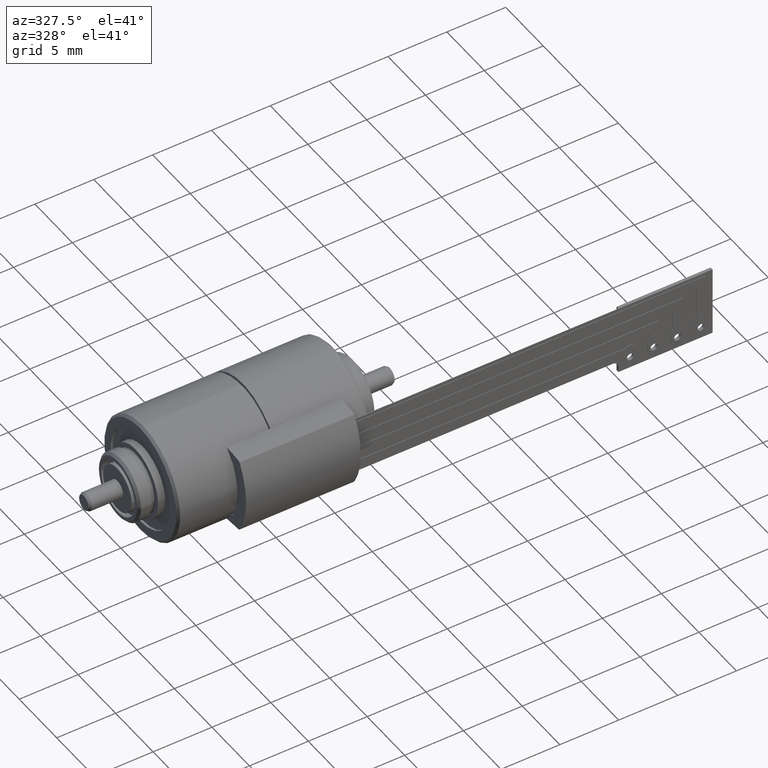
[diagram: clean part render]
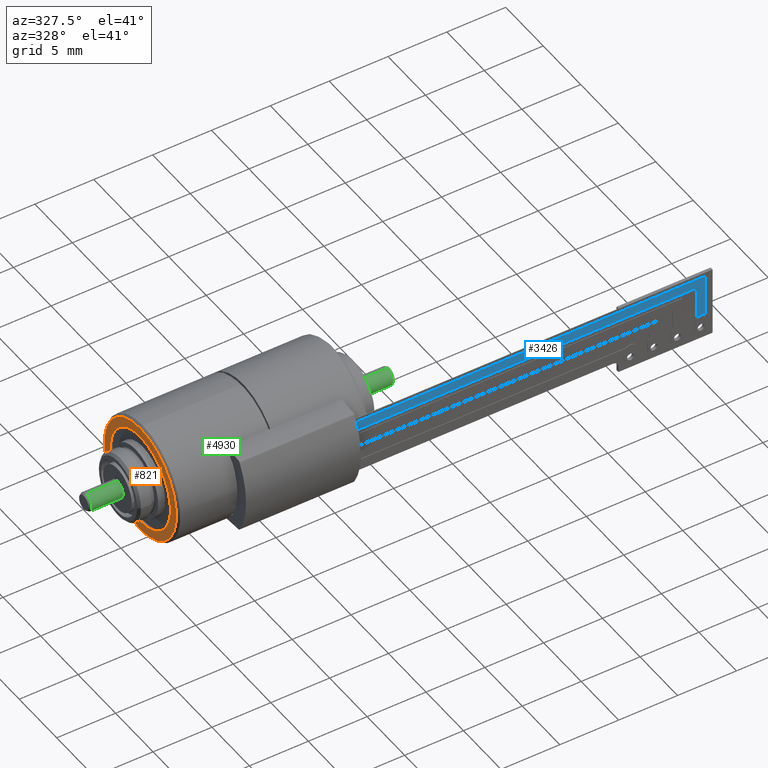
[diagram: same view with three faces highlighted in distinct colors, each labeled with its STEP entity id]
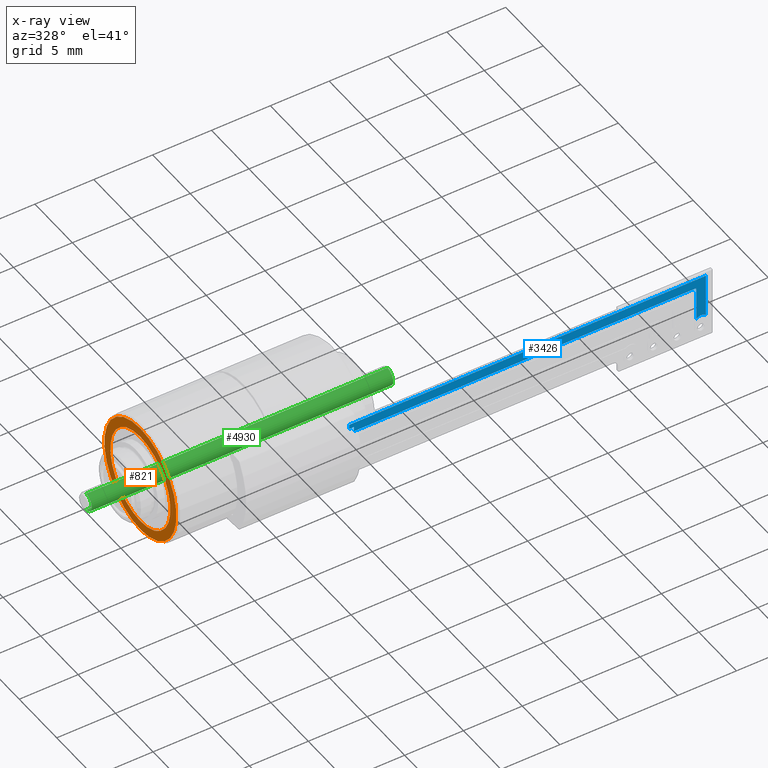
[diagram: x-ray of the same camera — body ghosted, the three highlighted faces saturated]
A machine part, auxiliary view with three faces highlighted in distinct colors.
The next image is the same camera in x-ray (body ghosted, the three faces saturated) — at least one of them is partly hidden behind the body in this view.
Their STEP definitions:

[orange] entity #821 — the highlighted planar face has unit normal (1, 0, 0).
#224=CARTESIAN_POINT('',(8.5E0,0.E0,0.E0));
#225=DIRECTION('',(-1.E0,0.E0,0.E0));
#226=DIRECTION('',(0.E0,0.E0,-1.E0));
#227=AXIS2_PLACEMENT_3D('',#224,#225,#226);
#229=CARTESIAN_POINT('',(8.5E0,0.E0,0.E0));
#230=DIRECTION('',(-1.E0,0.E0,0.E0));
#231=DIRECTION('',(0.E0,0.E0,1.E0));
#232=AXIS2_PLACEMENT_3D('',#229,#230,#231);
#234=CARTESIAN_POINT('',(8.5E0,0.E0,0.E0));
#235=DIRECTION('',(1.E0,0.E0,0.E0));
#236=DIRECTION('',(0.E0,0.E0,-1.E0));
#237=AXIS2_PLACEMENT_3D('',#234,#235,#236);
#239=CARTESIAN_POINT('',(8.5E0,0.E0,0.E0));
#240=DIRECTION('',(1.E0,0.E0,0.E0));
#241=DIRECTION('',(0.E0,0.E0,1.E0));
#242=AXIS2_PLACEMENT_3D('',#239,#240,#241);
#477=CARTESIAN_POINT('',(8.5E0,0.E0,-4.E0));
#478=VERTEX_POINT('',#477);
#479=CARTESIAN_POINT('',(8.5E0,0.E0,4.E0));
#480=VERTEX_POINT('',#479);
#481=CARTESIAN_POINT('',(8.5E0,0.E0,-4.8E0));
#482=CARTESIAN_POINT('',(8.5E0,0.E0,4.8E0));
#483=VERTEX_POINT('',#481);
#484=VERTEX_POINT('',#482);
#806=CARTESIAN_POINT('',(8.5E0,4.E0,0.E0));
#807=DIRECTION('',(-1.E0,0.E0,0.E0));
#808=DIRECTION('',(0.E0,0.E0,1.E0));
#809=AXIS2_PLACEMENT_3D('',#806,#807,#808);
#810=PLANE('',#809);
#812=ORIENTED_EDGE('',*,*,#811,.T.);
#814=ORIENTED_EDGE('',*,*,#813,.T.);
#815=EDGE_LOOP('',(#812,#814));
#816=FACE_OUTER_BOUND('',#815,.F.);
#817=ORIENTED_EDGE('',*,*,#788,.T.);
#818=ORIENTED_EDGE('',*,*,#798,.T.);
#819=EDGE_LOOP('',(#817,#818));
#820=FACE_BOUND('',#819,.F.);
#821=ADVANCED_FACE('',(#816,#820),#810,.F.);
#228=CIRCLE('',#227,4.8E0);
#233=CIRCLE('',#232,4.8E0);
#238=CIRCLE('',#237,4.E0);
#243=CIRCLE('',#242,4.E0);
#788=EDGE_CURVE('',#478,#480,#238,.T.);
#798=EDGE_CURVE('',#480,#478,#243,.T.);
#811=EDGE_CURVE('',#483,#484,#228,.T.);
#813=EDGE_CURVE('',#484,#483,#233,.T.);

[blue] entity #3426 — the highlighted planar face has unit normal (0, -1, 0).
#1926=DIRECTION('',(0.E0,-1.E0,0.E0));
#1927=VECTOR('',#1926,4.E-1);
#1928=CARTESIAN_POINT('',(8.1E0,4.7E0,6.E-2));
#1929=LINE('',#1928,#1927);
#2359=DIRECTION('',(0.E0,-1.E0,0.E0));
#2360=VECTOR('',#2359,2.922508278236E0);
#2361=CARTESIAN_POINT('',(3.76E1,3.9E0,6.E-2));
#2362=LINE('',#2361,#2360);
#2363=DIRECTION('',(1.E0,0.E0,0.E0));
#2364=VECTOR('',#2363,2.91E1);
#2365=CARTESIAN_POINT('',(8.5E0,3.9E0,6.E-2));
#2366=LINE('',#2365,#2364);
#2371=DIRECTION('',(0.E0,-1.E0,0.E0));
#2372=VECTOR('',#2371,4.E-1);
#2373=CARTESIAN_POINT('',(8.5E0,4.3E0,6.E-2));
#2374=LINE('',#2373,#2372);
#2379=DIRECTION('',(1.E0,0.E0,0.E0));
#2380=VECTOR('',#2379,4.E-1);
#2381=CARTESIAN_POINT('',(8.1E0,4.3E0,6.E-2));
#2382=LINE('',#2381,#2380);
#2387=CARTESIAN_POINT('',(3.8E1,6.E-1,6.E-2));
#2388=DIRECTION('',(0.E0,0.E0,1.E0));
#2389=DIRECTION('',(7.272727272727E-1,6.863485850246E-1,0.E0));
#2390=AXIS2_PLACEMENT_3D('',#2387,#2388,#2389);
#2392=DIRECTION('',(-1.E0,0.E0,0.E0));
#2393=VECTOR('',#2392,3.03E1);
#2394=CARTESIAN_POINT('',(3.84E1,4.7E0,6.E-2));
#2395=LINE('',#2394,#2393);
#2396=DIRECTION('',(0.E0,1.E0,0.E0));
#2397=VECTOR('',#2396,3.722508278236E0);
#2398=CARTESIAN_POINT('',(3.84E1,9.774917217635E-1,6.E-2));
#2399=LINE('',#2398,#2397);
#2632=CARTESIAN_POINT('',(8.1E0,4.7E0,6.E-2));
#2633=VERTEX_POINT('',#2632);
#2634=CARTESIAN_POINT('',(8.1E0,4.3E0,6.E-2));
#2635=VERTEX_POINT('',#2634);
#2782=CARTESIAN_POINT('',(3.76E1,9.774917217635E-1,6.E-2));
#2783=VERTEX_POINT('',#2782);
#2784=CARTESIAN_POINT('',(3.84E1,9.774917217635E-1,6.E-2));
#2785=VERTEX_POINT('',#2784);
#2786=CARTESIAN_POINT('',(3.76E1,3.9E0,6.E-2));
#2787=VERTEX_POINT('',#2786);
#2788=CARTESIAN_POINT('',(8.5E0,3.9E0,6.E-2));
#2789=VERTEX_POINT('',#2788);
#2790=CARTESIAN_POINT('',(8.5E0,4.3E0,6.E-2));
#2791=VERTEX_POINT('',#2790);
#2792=CARTESIAN_POINT('',(3.84E1,4.7E0,6.E-2));
#2793=VERTEX_POINT('',#2792);
#3409=CARTESIAN_POINT('',(3.8E1,6.E-1,6.E-2));
#3410=DIRECTION('',(0.E0,0.E0,1.E0));
#3411=DIRECTION('',(1.E0,0.E0,0.E0));
#3412=AXIS2_PLACEMENT_3D('',#3409,#3410,#3411);
#3413=PLANE('',#3412);
#3414=ORIENTED_EDGE('',*,*,#2903,.F.);
#3416=ORIENTED_EDGE('',*,*,#3415,.F.);
#3418=ORIENTED_EDGE('',*,*,#3417,.F.);
#3419=ORIENTED_EDGE('',*,*,#3340,.T.);
#3420=ORIENTED_EDGE('',*,*,#3362,.F.);
#3421=ORIENTED_EDGE('',*,*,#3376,.F.);
#3422=ORIENTED_EDGE('',*,*,#3390,.F.);
#3423=ORIENTED_EDGE('',*,*,#3402,.F.);
#3424=EDGE_LOOP('',(#3414,#3416,#3418,#3419,#3420,#3421,#3422,#3423));
#3425=FACE_OUTER_BOUND('',#3424,.F.);
#3426=ADVANCED_FACE('',(#3425),#3413,.T.);
#2391=CIRCLE('',#2390,5.5E-1);
#2903=EDGE_CURVE('',#2633,#2635,#1929,.T.);
#3340=EDGE_CURVE('',#2785,#2783,#2391,.T.);
#3362=EDGE_CURVE('',#2787,#2783,#2362,.T.);
#3376=EDGE_CURVE('',#2789,#2787,#2366,.T.);
#3390=EDGE_CURVE('',#2791,#2789,#2374,.T.);
#3402=EDGE_CURVE('',#2635,#2791,#2382,.T.);
#3415=EDGE_CURVE('',#2793,#2633,#2395,.T.);
#3417=EDGE_CURVE('',#2785,#2793,#2399,.T.);

[green] entity #4930 — the highlighted cylindrical surface (edge-blend (fillet) strip) has radius 0.75 mm, axis along (-1, 0, 0).
#4702=DIRECTION('',(1.250301945310E-14,3.606850498710E-10,1.E0));
#4703=VECTOR('',#4702,2.56E1);
#4704=CARTESIAN_POINT('',(7.5E-1,-8.768130253424E-9,-2.7E0));
#4705=LINE('',#4704,#4703);
#4740=CARTESIAN_POINT('',(0.E0,0.E0,-2.7E0));
#4741=DIRECTION('',(0.E0,0.E0,1.E0));
#4742=DIRECTION('',(-1.E0,1.129603445261E-8,0.E0));
#4743=AXIS2_PLACEMENT_3D('',#4740,#4741,#4742);
#4745=CARTESIAN_POINT('',(0.E0,0.E0,-2.7E0));
#4746=DIRECTION('',(0.E0,0.E0,1.E0));
#4747=DIRECTION('',(0.E0,-1.E0,0.E0));
#4748=AXIS2_PLACEMENT_3D('',#4745,#4746,#4747);
#4754=DIRECTION('',(-1.175305064E-14,-2.827560722222E-9,1.E0));
#4755=VECTOR('',#4754,2.9E0);
#4756=CARTESIAN_POINT('',(-7.5E-1,1.305723141100E-8,-2.7E0));
#4757=LINE('',#4756,#4755);
#4758=DIRECTION('',(-1.259883044685E-14,-1.876409630732E-10,1.E0));
#4759=VECTOR('',#4758,2.27E1);
#4760=CARTESIAN_POINT('',(-7.5E-1,4.857305316552E-9,2.E-1));
#4761=LINE('',#4760,#4759);
#4762=CARTESIAN_POINT('',(0.E0,0.E0,2.29E1));
#4763=DIRECTION('',(0.E0,0.E0,-1.E0));
#4764=DIRECTION('',(1.E0,0.E0,0.E0));
#4765=AXIS2_PLACEMENT_3D('',#4762,#4763,#4764);
#4767=CARTESIAN_POINT('',(0.E0,0.E0,2.29E1));
#4768=DIRECTION('',(0.E0,0.E0,-1.E0));
#4769=DIRECTION('',(0.E0,-1.E0,0.E0));
#4770=AXIS2_PLACEMENT_3D('',#4767,#4768,#4769);
#4811=CARTESIAN_POINT('',(-7.499999999999E-1,8.472025839456E-9,-2.7E0));
#4813=VERTEX_POINT('',#4811);
#4814=CARTESIAN_POINT('',(7.499999999999E-1,0.E0,-2.7E0));
#4815=VERTEX_POINT('',#4814);
#4816=CARTESIAN_POINT('',(7.500000000003E-1,4.654070232733E-10,2.29E1));
#4817=VERTEX_POINT('',#4816);
#4820=CARTESIAN_POINT('',(-7.500000000006E-1,1.242584793649E-9,2.29E1));
#4821=VERTEX_POINT('',#4820);
#4822=CARTESIAN_POINT('',(-7.5E-1,4.857305316552E-9,2.E-1));
#4823=VERTEX_POINT('',#4822);
#4832=CARTESIAN_POINT('',(0.E0,-7.499999999999E-1,-2.7E0));
#4833=VERTEX_POINT('',#4832);
#4834=CARTESIAN_POINT('',(0.E0,-7.500000000006E-1,2.29E1));
#4835=VERTEX_POINT('',#4834);
#4914=CARTESIAN_POINT('',(0.E0,0.E0,-7.E-1));
#4915=DIRECTION('',(0.E0,0.E0,1.E0));
#4916=DIRECTION('',(1.E0,0.E0,0.E0));
#4917=AXIS2_PLACEMENT_3D('',#4914,#4915,#4916);
#4918=CYLINDRICAL_SURFACE('',#4917,7.5E-1);
#4919=ORIENTED_EDGE('',*,*,#4908,.F.);
#4920=ORIENTED_EDGE('',*,*,#4906,.F.);
#4921=ORIENTED_EDGE('',*,*,#4861,.T.);
#4922=ORIENTED_EDGE('',*,*,#4859,.T.);
#4924=ORIENTED_EDGE('',*,*,#4923,.F.);
#4926=ORIENTED_EDGE('',*,*,#4925,.F.);
#4927=ORIENTED_EDGE('',*,*,#4853,.F.);
#4928=EDGE_LOOP('',(#4919,#4920,#4921,#4922,#4924,#4926,#4927));
#4929=FACE_OUTER_BOUND('',#4928,.F.);
#4930=ADVANCED_FACE('',(#4929),#4918,.T.);
#4744=CIRCLE('',#4743,7.499999999999E-1);
#4749=CIRCLE('',#4748,7.499999999999E-1);
#4766=CIRCLE('',#4765,7.500000000006E-1);
#4771=CIRCLE('',#4770,7.500000000006E-1);
#4853=EDGE_CURVE('',#4815,#4817,#4705,.T.);
#4859=EDGE_CURVE('',#4823,#4821,#4761,.T.);
#4861=EDGE_CURVE('',#4813,#4823,#4757,.T.);
#4906=EDGE_CURVE('',#4813,#4833,#4744,.T.);
#4908=EDGE_CURVE('',#4833,#4815,#4749,.T.);
#4923=EDGE_CURVE('',#4835,#4821,#4771,.T.);
#4925=EDGE_CURVE('',#4817,#4835,#4766,.T.);